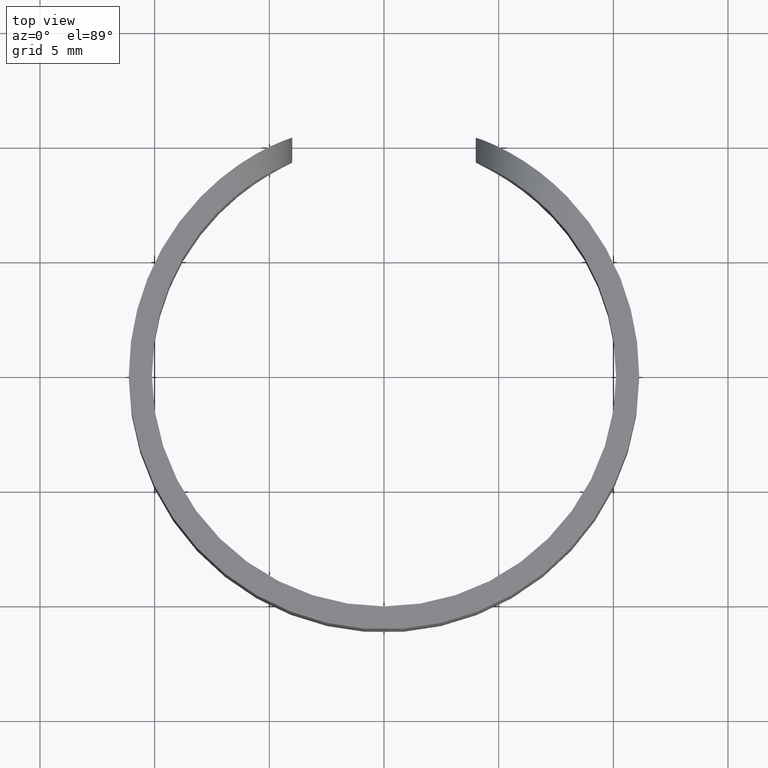
[diagram: clean part render]
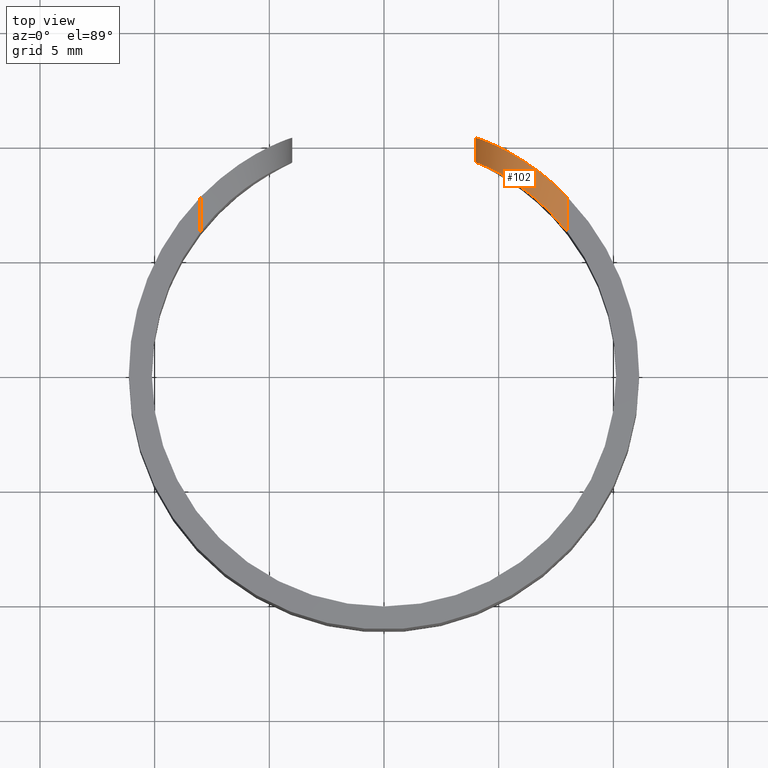
[diagram: same view with one face highlighted and labeled with its STEP entity id]
A machine part, top view. The second image highlights one B-rep face of the part: STEP entity #102.
In plain terms, the highlighted cylindrical surface (partial cylindrical patch) has radius 4 mm, axis along (-0, 1, 0).
Its self-contained STEP definition (entity closure, byte-faithful):
#35 = VERTEX_POINT ( 'NONE', #208 ) ;
#36 = CARTESIAN_POINT ( 'NONE',  ( 4.008509415401781500, 10.37774242272197400, 4.190278046695688400 ) ) ;
#37 = CARTESIAN_POINT ( 'NONE',  ( 4.001250195373558900, 8.293559071075241800, 3.899999999999999900 ) ) ;
#38 = EDGE_CURVE ( 'NONE', #485, #72, #448, .T. ) ;
#61 = CARTESIAN_POINT ( 'NONE',  ( 5.919382580235976300, 8.219010380731559100, 7.225211153489845600 ) ) ;
#72 = VERTEX_POINT ( 'NONE', #633 ) ;
#73 = CARTESIAN_POINT ( 'NONE',  ( 4.008790584810824100, 9.297595948818459600, 4.201521307890643300 ) ) ;
#75 = CARTESIAN_POINT ( 'NONE',  ( 4.001250195373559700, 9.300839847778425100, 3.899999999999998100 ) ) ;
#90 = CARTESIAN_POINT ( 'NONE',  ( 5.026643687882589100, 9.926469475605966200, 6.490007754328753500 ) ) ;
#102 = ADVANCED_FACE ( 'NONE', ( #580 ), #572, .T. ) ;
#133 = ORIENTED_EDGE ( 'NONE', *, *, #237, .F. ) ;
#134 = VERTEX_POINT ( 'NONE', #543 ) ;
#143 = CARTESIAN_POINT ( 'NONE',  ( 5.215562959815326100, 9.829430072311772900, 6.684043364736873500 ) ) ;
#158 = CARTESIAN_POINT ( 'NONE',  ( 5.086537306542194200, 8.756952909420581600, 6.555087516793129500 ) ) ;
#164 = CARTESIAN_POINT ( 'NONE',  ( 7.227798416163886400, 7.114393489978648500, 7.750848492385133100 ) ) ;
#178 = CARTESIAN_POINT ( 'NONE',  ( 4.198749070276265100, 9.213726947612437700, 5.080962103234990800 ) ) ;
#181 = ORIENTED_EDGE ( 'NONE', *, *, #226, .F. ) ;
#189 = CARTESIAN_POINT ( 'NONE',  ( 4.183917640690046000, 10.30853513641075200, 5.032907303278858700 ) ) ;
#197 = CARTESIAN_POINT ( 'NONE',  ( 4.683710545691555500, 10.09280924912606600, 6.053711102248882100 ) ) ;
#208 = CARTESIAN_POINT ( 'NONE',  ( 8.000000000000000000, 6.206095793653203100, 7.799999999999999800 ) ) ;
#219 = CARTESIAN_POINT ( 'NONE',  ( 8.000000000000000000, 0.0000000000000000000, 3.799999999999999400 ) ) ;
#223 = CARTESIAN_POINT ( 'NONE',  ( 5.701258363416676500, 8.370991384762202600, 7.084533559148247200 ) ) ;
#226 = EDGE_CURVE ( 'NONE', #35, #485, #481, .T. ) ;
#229 = ORIENTED_EDGE ( 'NONE', *, *, #575, .F. ) ;
#237 = EDGE_CURVE ( 'NONE', #134, #35, #248, .T. ) ;
#243 = CARTESIAN_POINT ( 'NONE',  ( 4.532237980768758900, 10.16084477143199500, 5.813559048247612700 ) ) ;
#248 = LINE ( 'NONE', #541, #365 ) ;
#253 = CARTESIAN_POINT ( 'NONE',  ( 6.276623606514001500, 9.189001011993763500, 7.418380919235120000 ) ) ;
#262 = DIRECTION ( 'NONE',  ( 0.0000000000000000000, 0.0000000000000000000, 1.000000000000000000 ) ) ;
#264 = DIRECTION ( 'NONE',  ( -0.0000000000000000000, 1.000000000000000000, 0.0000000000000000000 ) ) ;
#268 = CARTESIAN_POINT ( 'NONE',  ( 6.356711401953806000, 7.885647844156164200, 7.455221317095326800 ) ) ;
#271 = CARTESIAN_POINT ( 'NONE',  ( 4.001250195373559700, 9.300839847778425100, 3.899999999999998100 ) ) ;
#289 = CARTESIAN_POINT ( 'NONE',  ( 8.000000000000000000, 7.730823048033112600, 7.799999999999999800 ) ) ;
#298 = CARTESIAN_POINT ( 'NONE',  ( 4.001250195373561500, 10.38054053862432500, 3.900000000000077600 ) ) ;
#316 = ORIENTED_EDGE ( 'NONE', *, *, #38, .F. ) ;
#346 = DIRECTION ( 'NONE',  ( -0.0000000000000000000, 1.000000000000000000, 0.0000000000000000000 ) ) ;
#359 = VECTOR ( 'NONE', #346, 1000.000000000000000 ) ;
#364 = DIRECTION ( 'NONE',  ( 0.0000000000000000000, -1.000000000000000000, 0.0000000000000000000 ) ) ;
#365 = VECTOR ( 'NONE', #364, 1000.000000000000000 ) ;
#378 = CARTESIAN_POINT ( 'NONE',  ( 4.283673259212711100, 10.26811039051322700, 5.306223429147178400 ) ) ;
#408 = CARTESIAN_POINT ( 'NONE',  ( 4.303570322429815000, 9.166055858631191100, 5.356081164430492900 ) ) ;
#413 = CARTESIAN_POINT ( 'NONE',  ( 4.049988818232481700, 9.280078048836511300, 4.498415495648090200 ) ) ;
#444 = CARTESIAN_POINT ( 'NONE',  ( 7.631501941289898600, 6.681110129186929900, 7.800000000000001600 ) ) ;
#447 = B_SPLINE_CURVE_WITH_KNOTS ( 'NONE', 3,
 ( #298, #36, #462, #189, #378, #243, #197, #90, #143, #521, #523, #253, #576, #623, #571, #289 ),
 .UNSPECIFIED., .F., .F.,
 ( 4, 2, 2, 2, 2, 2, 2, 4 ),
 ( 9.879956830789434300E-005, 0.0009611438505434354000, 0.001823488132778976500, 0.002685832415014517500, 0.003548176697250058600, 0.004410520979485599600, 0.005272865261721141100, 0.006997553826192222400 ),
 .UNSPECIFIED. ) ;
#448 = LINE ( 'NONE', #37, #359 ) ;
#450 = CARTESIAN_POINT ( 'NONE',  ( 4.568240781612598100, 9.037061119902720200, 5.875574527336965500 ) ) ;
#462 = CARTESIAN_POINT ( 'NONE',  ( 4.046888289149073600, 10.36309599771422400, 4.474872427239577500 ) ) ;
#468 = EDGE_LOOP ( 'NONE', ( #133, #229, #316, #181 ) ) ;
#481 = B_SPLINE_CURVE_WITH_KNOTS ( 'NONE', 3,
 ( #488, #444, #164, #486, #268, #61, #223, #546, #158, #606, #450, #408, #178, #413, #73, #271 ),
 .UNSPECIFIED., .F., .F.,
 ( 4, 2, 2, 2, 2, 2, 2, 4 ),
 ( 0.0000000000000000000, 0.001781276321637601600, 0.002671914482456402600, 0.003562552643275204000, 0.004453190804094005900, 0.005343828964912806000, 0.006234467125731607000, 0.007125105286550408000 ),
 .UNSPECIFIED. ) ;
#485 = VERTEX_POINT ( 'NONE', #75 ) ;
#486 = CARTESIAN_POINT ( 'NONE',  ( 6.579378790269400300, 7.701455034789924000, 7.546092651340698500 ) ) ;
#488 = CARTESIAN_POINT ( 'NONE',  ( 8.000000000000000000, 6.206095793653203100, 7.799999999999999800 ) ) ;
#521 = CARTESIAN_POINT ( 'NONE',  ( 5.622090501069651600, 9.602702272383906400, 7.027435851466609800 ) ) ;
#523 = CARTESIAN_POINT ( 'NONE',  ( 5.838803087984467200, 9.473231866475893900, 7.175194005950489300 ) ) ;
#541 = CARTESIAN_POINT ( 'NONE',  ( 8.000000000000000000, 9.301377586142818300, 7.799999999999999800 ) ) ;
#543 = CARTESIAN_POINT ( 'NONE',  ( 8.000000000000000000, 7.730823048033112600, 7.799999999999999800 ) ) ;
#546 = CARTESIAN_POINT ( 'NONE',  ( 5.282141394911905200, 8.641575433585572300, 6.747137325555330600 ) ) ;
#569 = AXIS2_PLACEMENT_3D ( 'NONE', #219, #264, #262 ) ;
#571 = CARTESIAN_POINT ( 'NONE',  ( 7.596839164062944700, 8.148021406792212300, 7.800000000000000700 ) ) ;
#572 = CYLINDRICAL_SURFACE ( 'NONE', #569, 4.000000000000000000 ) ;
#575 = EDGE_CURVE ( 'NONE', #72, #134, #447, .T. ) ;
#576 = CARTESIAN_POINT ( 'NONE',  ( 6.501887589211069200, 9.031561767834935100, 7.516286287846984500 ) ) ;
#580 = FACE_OUTER_BOUND ( 'NONE', #468, .T. ) ;
#606 = CARTESIAN_POINT ( 'NONE',  ( 4.730351865959906200, 8.954376430152176900, 6.121243884413674500 ) ) ;
#623 = CARTESIAN_POINT ( 'NONE',  ( 7.169471451739840800, 8.525045739379107700, 7.740903526467290500 ) ) ;
#633 = CARTESIAN_POINT ( 'NONE',  ( 4.001250195373561500, 10.38054053862432500, 3.900000000000077600 ) ) ;